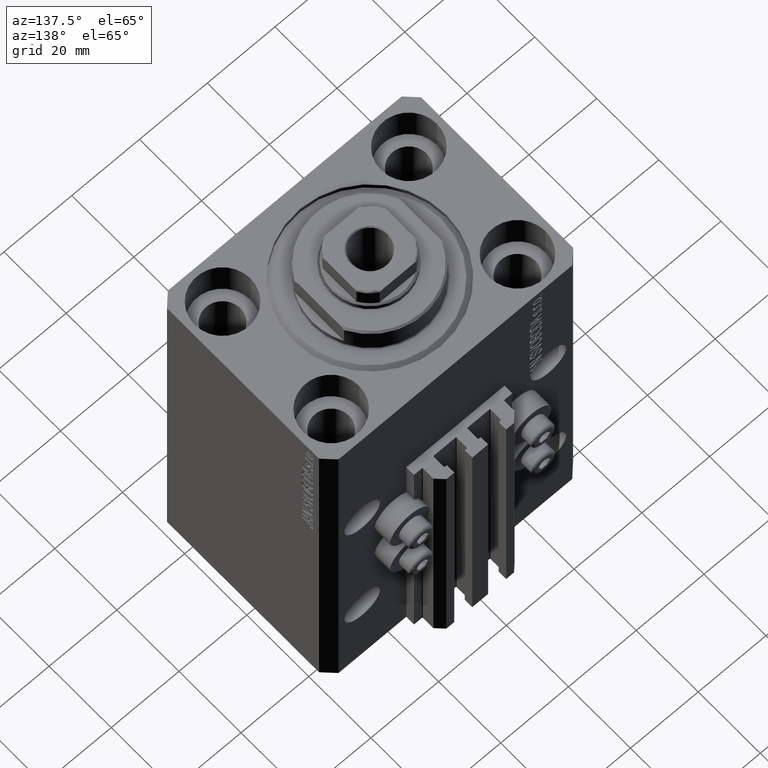
[diagram: clean part render]
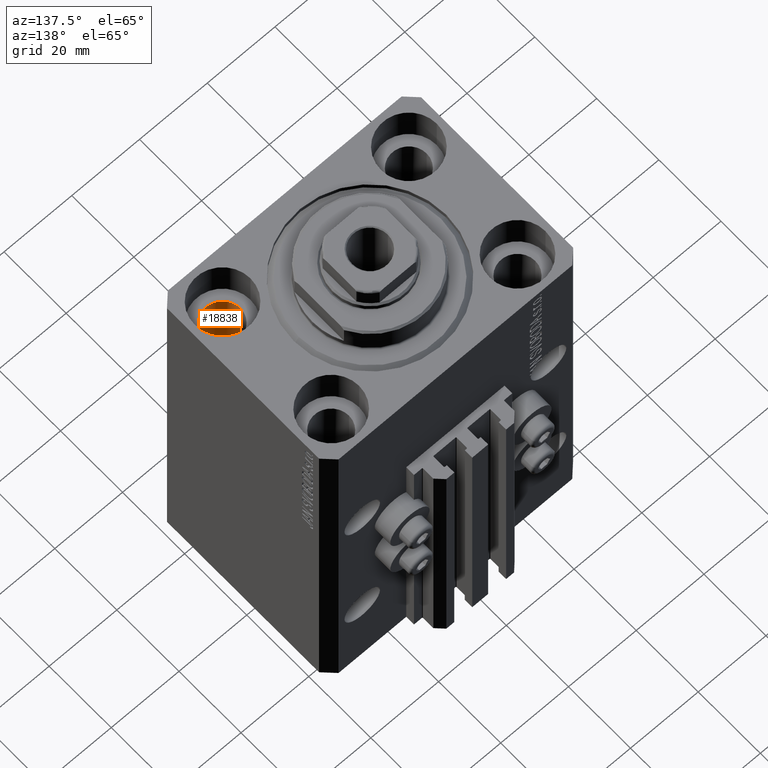
[diagram: same view with one face highlighted and labeled with its STEP entity id]
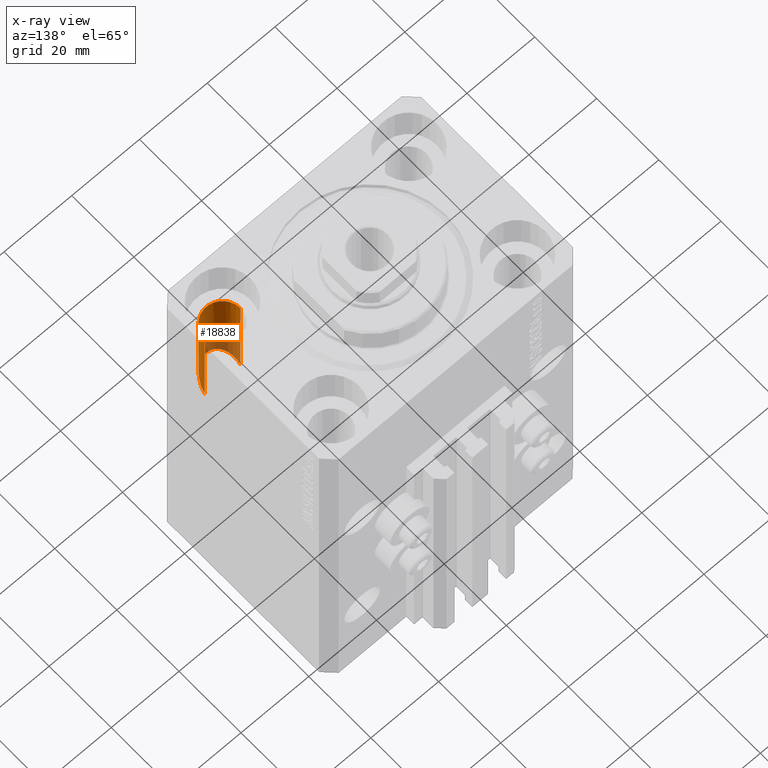
[diagram: x-ray of the same camera — body ghosted, the highlighted face saturated]
A machine part, auxiliary view. The second image highlights one B-rep face of the part: STEP entity #18838.
The next image is the same camera in x-ray: the body ghosted, the highlighted face saturated — about 33% of this face is hidden behind the body in this view.
In plain terms, the highlighted cylindrical surface (edge-blend (fillet) strip) has radius 5.25 mm, axis along (0, 0, 1).
Its self-contained STEP definition (entity closure, byte-faithful):
#2355 = ORIENTED_EDGE ( 'NONE', *, *, #8311, .T. ) ;
#2490 = CARTESIAN_POINT ( 'NONE',  ( 32.75000000000000000, -17.50000000000000000, -39.99999999999999289 ) ) ;
#3938 = CARTESIAN_POINT ( 'NONE',  ( 32.75000000000000000, -17.50000000000000000, -110.0000000000000000 ) ) ;
#5135 = CARTESIAN_POINT ( 'NONE',  ( 22.25000000000000711, -17.50000000000000000, -110.0000000000000000 ) ) ;
#6492 = ORIENTED_EDGE ( 'NONE', *, *, #24465, .F. ) ;
#8311 = EDGE_CURVE ( 'NONE', #38531, #32420, #10272, .T. ) ;
#9687 = CARTESIAN_POINT ( 'NONE',  ( 32.74999999999999289, -27.99999999999998934, -29.50000000000001066 ) ) ;
#10272 = LINE ( 'NONE', #5135, #18399 ) ;
#10465 = CARTESIAN_POINT ( 'NONE',  ( 32.75000000000000000, -17.50000000000000000, -39.99999999999999289 ) ) ;
#11666 = CARTESIAN_POINT ( 'NONE',  ( 22.25000000000000711, -17.50000000000000000, -11.00000000000000000 ) ) ;
#12402 = EDGE_CURVE ( 'NONE', #32420, #43072, #36062, .T. ) ;
#12815 = CARTESIAN_POINT ( 'NONE',  ( 27.50000000000000355, -17.50000000000000000, -11.00000000000000000 ) ) ;
#15696 = VECTOR ( 'NONE', #18542, 1000.000000000000000 ) ;
#17182 = AXIS2_PLACEMENT_3D ( 'NONE', #34689, #38762, #27507 ) ;
#18399 = VECTOR ( 'NONE', #19501, 1000.000000000000000 ) ;
#18455 = AXIS2_PLACEMENT_3D ( 'NONE', #12815, #23840, #27654 ) ;
#18542 = DIRECTION ( 'NONE',  ( -0.000000000000000000, -0.000000000000000000, 1.000000000000000000 ) ) ;
#18838 = ADVANCED_FACE ( 'NONE', ( #20081 ), #23916, .F. ) ;
#19501 = DIRECTION ( 'NONE',  ( -0.000000000000000000, -0.000000000000000000, 1.000000000000000000 ) ) ;
#20081 = FACE_OUTER_BOUND ( 'NONE', #41354, .T. ) ;
#23840 = DIRECTION ( 'NONE',  ( 0.000000000000000000, 0.000000000000000000, 1.000000000000000000 ) ) ;
#23916 = CYLINDRICAL_SURFACE ( 'NONE', #17182, 5.249999999999997335 ) ;
#24465 = EDGE_CURVE ( 'NONE', #41963, #43072, #25263, .T. ) ;
#24778 = ORIENTED_EDGE ( 'NONE', *, *, #12402, .T. ) ;
#25164 = CARTESIAN_POINT ( 'NONE',  ( 32.75000000000000000, -17.50000000000000000, -11.00000000000000000 ) ) ;
#25263 = LINE ( 'NONE', #3938, #15696 ) ;
#27507 = DIRECTION ( 'NONE',  ( 1.000000000000000000, 0.000000000000000000, 0.000000000000000000 ) ) ;
#27654 = DIRECTION ( 'NONE',  ( 1.000000000000000000, 0.000000000000000000, 0.000000000000000000 ) ) ;
#27869 = CARTESIAN_POINT ( 'NONE',  ( 22.25000000000001066, -17.50000000000000000, -39.99999999999999289 ) ) ;
#31959 = CARTESIAN_POINT ( 'NONE',  ( 22.25000000000001066, -17.50000000000000000, -39.99999999999999289 ) ) ;
#32420 = VERTEX_POINT ( 'NONE', #11666 ) ;
#33209 =( BOUNDED_CURVE ( )  B_SPLINE_CURVE ( 3, ( #2490, #9687, #45839, #27869 ),
 .UNSPECIFIED., .F., .F. ) 
 B_SPLINE_CURVE_WITH_KNOTS ( ( 4, 4 ),
 ( 4.712388980384689674, 7.853981633974482790 ),
 .UNSPECIFIED. ) 
 CURVE ( )  GEOMETRIC_REPRESENTATION_ITEM ( )  RATIONAL_B_SPLINE_CURVE ( ( 1.000000000000000000, 0.3333333333333333703, 0.3333333333333333703, 1.000000000000000000 ) ) 
 REPRESENTATION_ITEM ( '' )  );
#34689 = CARTESIAN_POINT ( 'NONE',  ( 27.50000000000000355, -17.50000000000000000, -110.0000000000000000 ) ) ;
#36062 = CIRCLE ( 'NONE', #18455, 5.249999999999997335 ) ;
#36071 = ORIENTED_EDGE ( 'NONE', *, *, #40741, .T. ) ;
#38531 = VERTEX_POINT ( 'NONE', #31959 ) ;
#38762 = DIRECTION ( 'NONE',  ( -0.000000000000000000, -0.000000000000000000, 1.000000000000000000 ) ) ;
#40741 = EDGE_CURVE ( 'NONE', #41963, #38531, #33209, .T. ) ;
#41354 = EDGE_LOOP ( 'NONE', ( #36071, #2355, #24778, #6492 ) ) ;
#41963 = VERTEX_POINT ( 'NONE', #10465 ) ;
#43072 = VERTEX_POINT ( 'NONE', #25164 ) ;
#45839 = CARTESIAN_POINT ( 'NONE',  ( 22.25000000000001421, -27.99999999999998934, -29.50000000000001066 ) ) ;